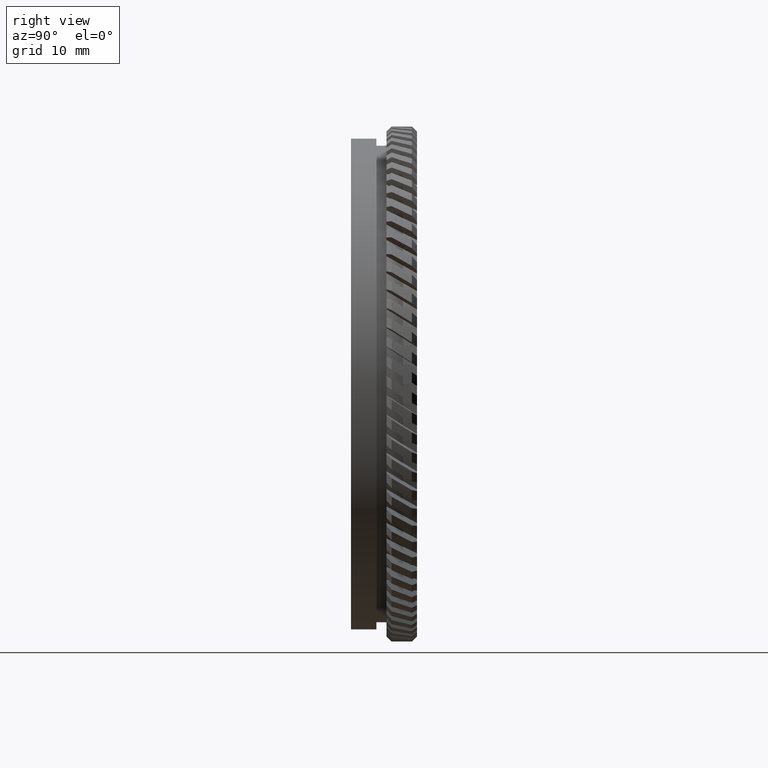
[diagram: clean part render]
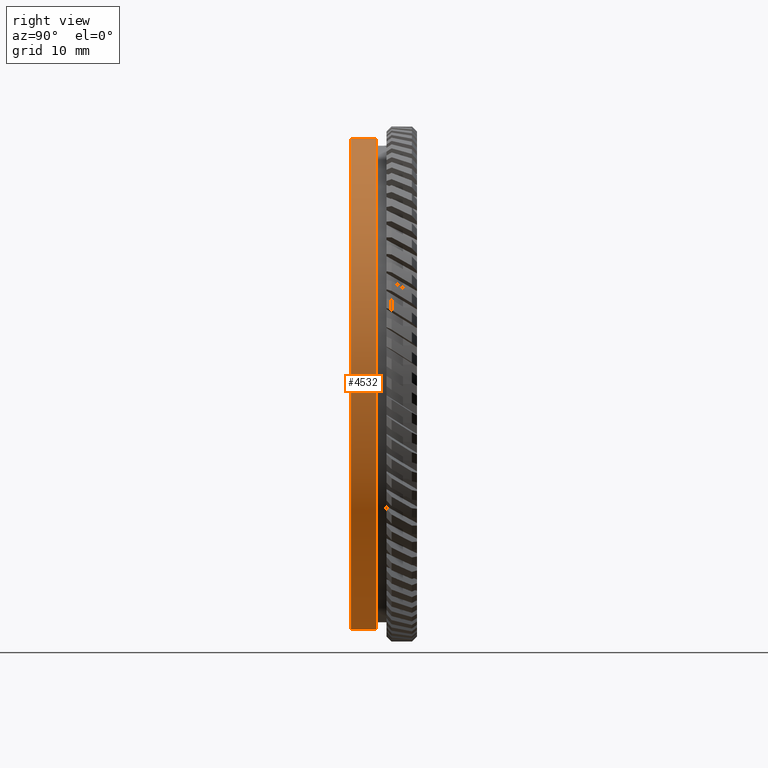
[diagram: same view with one face highlighted and labeled with its STEP entity id]
A machine part, right view. The second image highlights one B-rep face of the part: STEP entity #4532.
In plain terms, the highlighted cylindrical surface (partial cylindrical patch) has radius 24.2 mm, axis along (-0, 1, -0).
Its self-contained STEP definition (entity closure, byte-faithful):
#123 = VERTEX_POINT ( 'NONE', #11528 ) ;
#742 = AXIS2_PLACEMENT_3D ( 'NONE', #13081, #14802, #19453 ) ;
#1152 = ORIENTED_EDGE ( 'NONE', *, *, #17669, .F. ) ;
#1331 = VERTEX_POINT ( 'NONE', #8049 ) ;
#1334 = CARTESIAN_POINT ( 'NONE',  ( 0.0000000000000000000, 15.37125740523061900, 0.0000000000000000000 ) ) ;
#1496 = AXIS2_PLACEMENT_3D ( 'NONE', #10596, #7480, #20047 ) ;
#2019 = VECTOR ( 'NONE', #12520, 1000.000000000000000 ) ;
#2355 = VERTEX_POINT ( 'NONE', #19705 ) ;
#2798 = VECTOR ( 'NONE', #17111, 1000.000000000000000 ) ;
#2823 = EDGE_LOOP ( 'NONE', ( #15367, #7632, #1152, #15803 ) ) ;
#4223 = DIRECTION ( 'NONE',  ( -0.0000000000000000000, 1.000000000000000000, -0.0000000000000000000 ) ) ;
#4532 = ADVANCED_FACE ( 'NONE', ( #14091 ), #19073, .T. ) ;
#4895 = CIRCLE ( 'NONE', #10905, 24.20000000000000600 ) ;
#6920 = VERTEX_POINT ( 'NONE', #7997 ) ;
#7480 = DIRECTION ( 'NONE',  ( -0.0000000000000000000, 1.000000000000000000, -0.0000000000000000000 ) ) ;
#7632 = ORIENTED_EDGE ( 'NONE', *, *, #19774, .T. ) ;
#7997 = CARTESIAN_POINT ( 'NONE',  ( 0.0000000000000000000, 17.87125740523061500, 24.20000000000000600 ) ) ;
#8049 = CARTESIAN_POINT ( 'NONE',  ( 2.963645253936595400E-015, 15.37125740523061900, -24.20000000000000600 ) ) ;
#10596 = CARTESIAN_POINT ( 'NONE',  ( 0.0000000000000000000, 66.62876213592232900, 0.0000000000000000000 ) ) ;
#10905 = AXIS2_PLACEMENT_3D ( 'NONE', #1334, #4223, #16655 ) ;
#11528 = CARTESIAN_POINT ( 'NONE',  ( 2.963645253936595400E-015, 17.87125740523061500, -24.20000000000000600 ) ) ;
#12520 = DIRECTION ( 'NONE',  ( -0.0000000000000000000, 1.000000000000000000, -0.0000000000000000000 ) ) ;
#13081 = CARTESIAN_POINT ( 'NONE',  ( 0.0000000000000000000, 17.87125740523061500, 0.0000000000000000000 ) ) ;
#13451 = EDGE_CURVE ( 'NONE', #2355, #1331, #4895, .T. ) ;
#14091 = FACE_OUTER_BOUND ( 'NONE', #2823, .T. ) ;
#14802 = DIRECTION ( 'NONE',  ( -0.0000000000000000000, 1.000000000000000000, -0.0000000000000000000 ) ) ;
#15367 = ORIENTED_EDGE ( 'NONE', *, *, #13451, .T. ) ;
#15803 = ORIENTED_EDGE ( 'NONE', *, *, #18792, .F. ) ;
#16655 = DIRECTION ( 'NONE',  ( 0.0000000000000000000, 0.0000000000000000000, 1.000000000000000000 ) ) ;
#17111 = DIRECTION ( 'NONE',  ( -0.0000000000000000000, 1.000000000000000000, -0.0000000000000000000 ) ) ;
#17133 = CARTESIAN_POINT ( 'NONE',  ( 2.963645253936595400E-015, 66.62876213592232900, -24.20000000000000600 ) ) ;
#17669 = EDGE_CURVE ( 'NONE', #6920, #123, #18156, .T. ) ;
#18129 = LINE ( 'NONE', #18787, #2798 ) ;
#18156 = CIRCLE ( 'NONE', #742, 24.20000000000000600 ) ;
#18787 = CARTESIAN_POINT ( 'NONE',  ( 0.0000000000000000000, 66.62876213592232900, 24.20000000000000600 ) ) ;
#18792 = EDGE_CURVE ( 'NONE', #2355, #6920, #18129, .T. ) ;
#19073 = CYLINDRICAL_SURFACE ( 'NONE', #1496, 24.20000000000000600 ) ;
#19453 = DIRECTION ( 'NONE',  ( 0.0000000000000000000, 0.0000000000000000000, 1.000000000000000000 ) ) ;
#19705 = CARTESIAN_POINT ( 'NONE',  ( 0.0000000000000000000, 15.37125740523061900, 24.20000000000000600 ) ) ;
#19774 = EDGE_CURVE ( 'NONE', #1331, #123, #20032, .T. ) ;
#20032 = LINE ( 'NONE', #17133, #2019 ) ;
#20047 = DIRECTION ( 'NONE',  ( 0.0000000000000000000, 0.0000000000000000000, 1.000000000000000000 ) ) ;